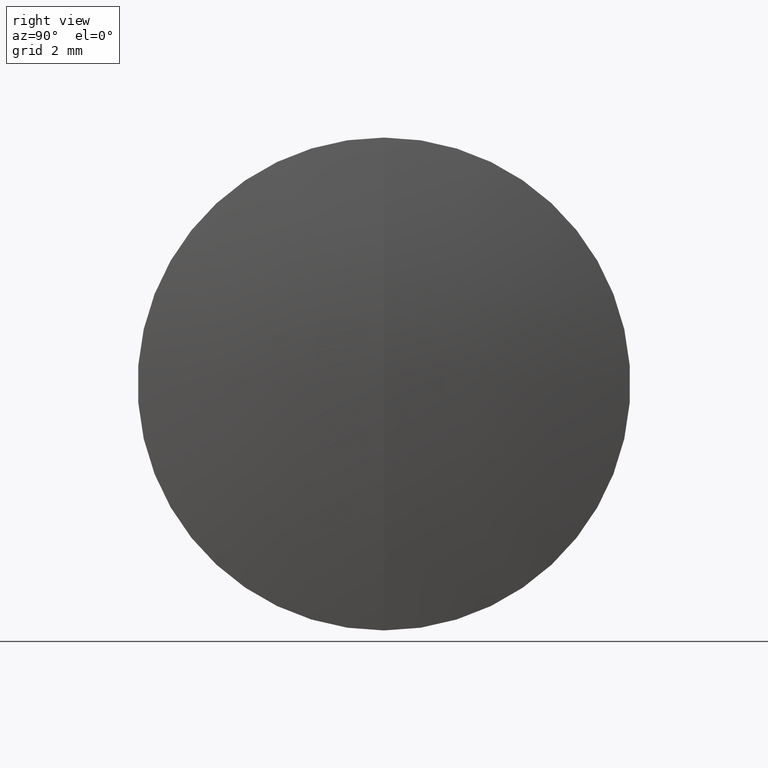
[diagram: clean part render]
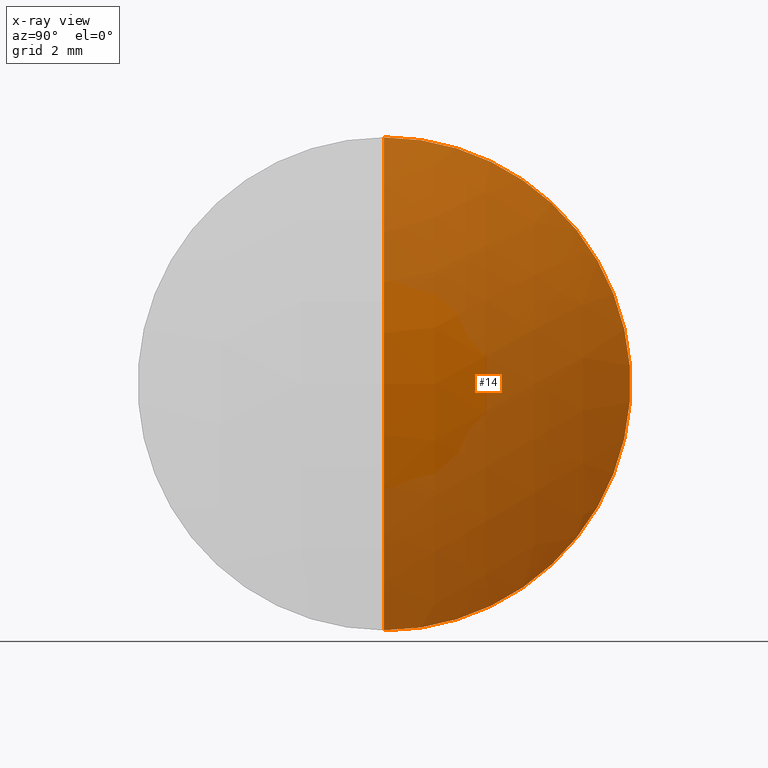
[diagram: x-ray — body ghosted, one internal face saturated and labeled with its STEP entity id]
A machine part, right view, then the same camera in x-ray: the body is ghosted and one INTERNAL B-rep face — a face not visible from any outside direction — is saturated and labeled: STEP entity #14.
In plain terms, the highlighted spherical surface has radius 18.408 mm.
Its self-contained STEP definition (entity closure, byte-faithful):
#9 = DIRECTION ( 'NONE',  ( -0.0000000000000000000, 1.000000000000000000, 1.224646799147353200E-016 ) ) ;
#14 = ADVANCED_FACE ( 'NONE', ( #113 ), #245, .T. ) ;
#16 = DIRECTION ( 'NONE',  ( 0.0000000000000000000, -1.000000000000000000, 0.0000000000000000000 ) ) ;
#27 = CARTESIAN_POINT ( 'NONE',  ( 22.70377877512568100, 9.797174393178825700E-016, -8.000000000000000000 ) ) ;
#30 = DIRECTION ( 'NONE',  ( 0.0000000000000000000, 1.000000000000000000, 0.0000000000000000000 ) ) ;
#38 = CARTESIAN_POINT ( 'NONE',  ( 6.125043479573127700, 0.0000000000000000000, -2.710505431213761100E-017 ) ) ;
#52 = ORIENTED_EDGE ( 'NONE', *, *, #243, .T. ) ;
#68 = VERTEX_POINT ( 'NONE', #260 ) ;
#72 = DIRECTION ( 'NONE',  ( 0.0000000000000000000, -1.224646799147353200E-016, 1.000000000000000000 ) ) ;
#95 = AXIS2_PLACEMENT_3D ( 'NONE', #38, #16, #117 ) ;
#113 = FACE_OUTER_BOUND ( 'NONE', #178, .T. ) ;
#115 = DIRECTION ( 'NONE',  ( 0.0000000000000000000, 0.0000000000000000000, 1.000000000000000000 ) ) ;
#116 = CIRCLE ( 'NONE', #254, 18.40800000000000100 ) ;
#117 = DIRECTION ( 'NONE',  ( 0.0000000000000000000, 0.0000000000000000000, -1.000000000000000000 ) ) ;
#125 = CARTESIAN_POINT ( 'NONE',  ( 6.125043479573127700, 0.0000000000000000000, -2.710505431213761100E-017 ) ) ;
#129 = VERTEX_POINT ( 'NONE', #324 ) ;
#133 = CIRCLE ( 'NONE', #95, 18.40800000000000100 ) ;
#170 = CARTESIAN_POINT ( 'NONE',  ( 6.125043479573127700, 0.0000000000000000000, -2.710505431213761100E-017 ) ) ;
#178 = EDGE_LOOP ( 'NONE', ( #213, #52, #325 ) ) ;
#197 = CARTESIAN_POINT ( 'NONE',  ( 22.70377877512568100, 0.0000000000000000000, 0.0000000000000000000 ) ) ;
#205 = VERTEX_POINT ( 'NONE', #27 ) ;
#209 = DIRECTION ( 'NONE',  ( 0.0000000000000000000, 0.0000000000000000000, 1.000000000000000000 ) ) ;
#211 = EDGE_CURVE ( 'NONE', #129, #68, #133, .T. ) ;
#213 = ORIENTED_EDGE ( 'NONE', *, *, #211, .F. ) ;
#230 = AXIS2_PLACEMENT_3D ( 'NONE', #197, #251, #209 ) ;
#243 = EDGE_CURVE ( 'NONE', #129, #205, #116, .T. ) ;
#245 = SPHERICAL_SURFACE ( 'NONE', #344, 18.40800000000000100 ) ;
#251 = DIRECTION ( 'NONE',  ( -1.000000000000000000, -0.0000000000000000000, -0.0000000000000000000 ) ) ;
#254 = AXIS2_PLACEMENT_3D ( 'NONE', #125, #9, #72 ) ;
#260 = CARTESIAN_POINT ( 'NONE',  ( 22.70377877512568100, 0.0000000000000000000, 8.000000000000000000 ) ) ;
#273 = EDGE_CURVE ( 'NONE', #68, #205, #322, .T. ) ;
#322 = CIRCLE ( 'NONE', #230, 8.000000000000000000 ) ;
#324 = CARTESIAN_POINT ( 'NONE',  ( 24.53304347957312700, 0.0000000000000000000, 1.100059859623086400E-015 ) ) ;
#325 = ORIENTED_EDGE ( 'NONE', *, *, #273, .F. ) ;
#344 = AXIS2_PLACEMENT_3D ( 'NONE', #170, #30, #115 ) ;